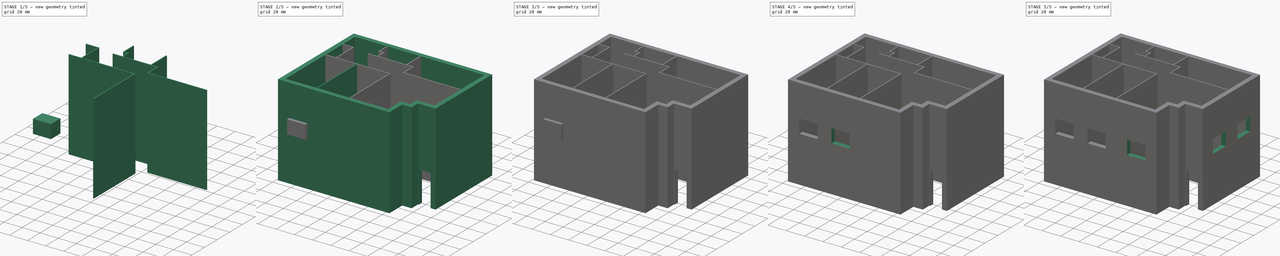
[diagram: build sequence overview — one tinted view per stage of 5, left to right]
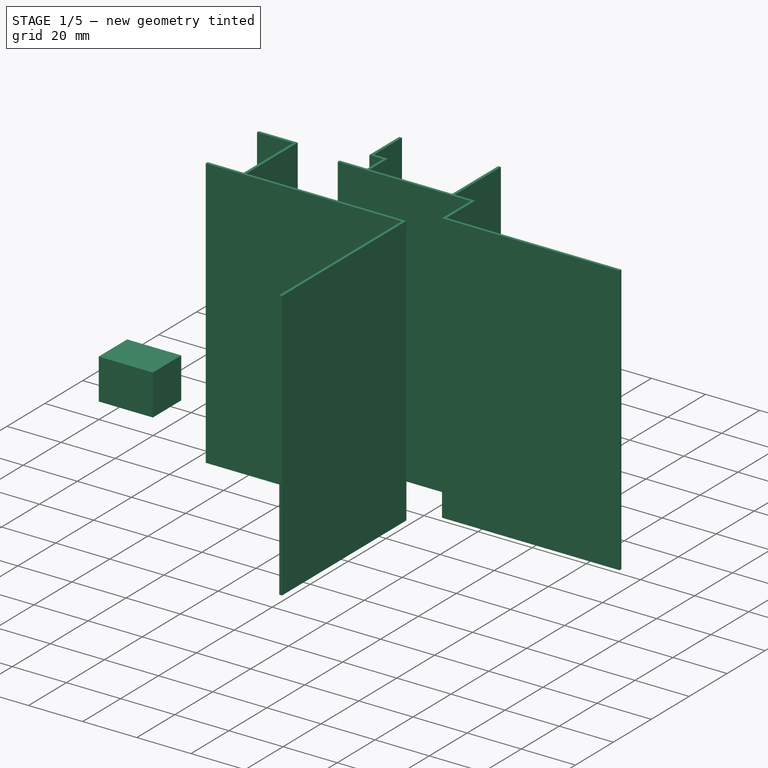
[diagram: stage 1 of 5 — iso view after this stage's code; geometry added in this stage tinted green]
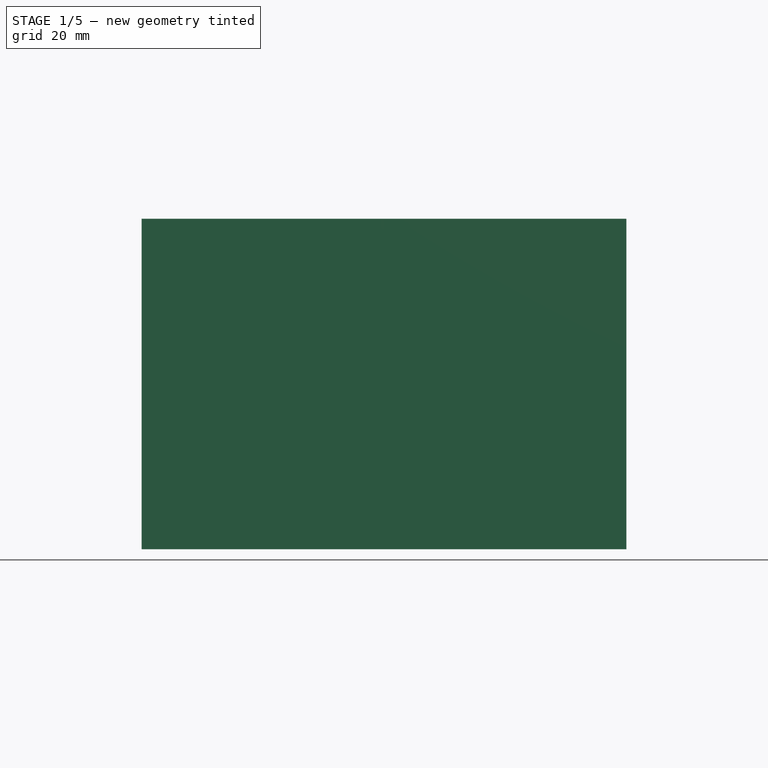
[diagram: stage 1 of 5 — front view after this stage's code; geometry added in this stage tinted green]
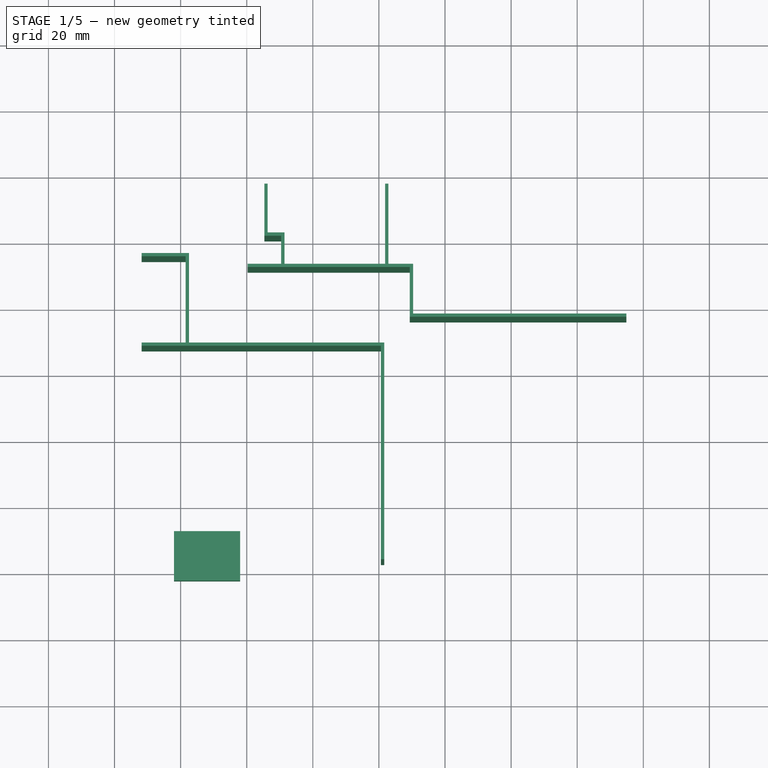
[diagram: stage 1 of 5 — top view after this stage's code; geometry added in this stage tinted green]
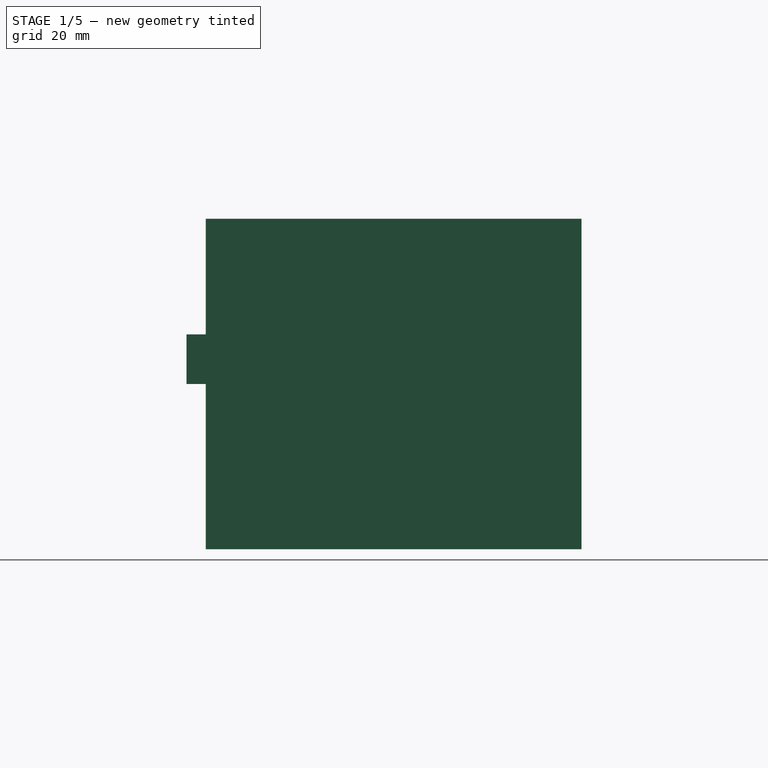
[diagram: stage 1 of 5 — right view after this stage's code; geometry added in this stage tinted green]
FCSTD DOCUMENT  (FreeCAD 0.18R4 (GitTag))
Label: Home
License: All rights reserved
LicenseURL: http://en.wikipedia.org/wiki/All_rights_reserved
objects: Part::Box×12, Part::Cut×12, Sketcher::SketchObject×7, Part::FeaturePython×7
note: 38 computed .brp shape members not serialized (recipe doc carries the construction recipe); baked Part::Feature solids carry a one-line shape summary decoded from their .brp

FEATURE [Sketcher::SketchObject] Sketch
  sketch-geometry (9):
    g0: LineSegment StartX=-71.807 StartY=51.099 StartZ=0 EndX=-71.807 EndY=56.5366 EndZ=0
    g1: LineSegment StartX=-71.807 StartY=56.5366 StartZ=0 EndX=74.8863 EndY=56.5366 EndZ=0
    g2: LineSegment StartX=74.8863 StartY=56.5366 StartZ=0 EndX=74.8863 EndY=-27.1132 EndZ=0
    g3: LineSegment StartX=74.8863 StartY=-27.1132 StartZ=0 EndX=55.6491 EndY=-27.1132 EndZ=0
    g4: LineSegment StartX=55.6491 StartY=-27.1132 StartZ=0 EndX=55.6491 EndY=-37.1244 EndZ=0
    g5: LineSegment StartX=55.6491 StartY=-37.1244 StartZ=0 EndX=45.3779 EndY=-37.1244 EndZ=0
    g6: LineSegment StartX=45.3779 StartY=-37.1244 StartZ=0 EndX=45.3779 EndY=-57.1594 EndZ=0
    g7: LineSegment StartX=45.3779 StartY=-57.1594 StartZ=0 EndX=-71.807 EndY=-57.1594 EndZ=0
    g8: LineSegment StartX=-71.807 StartY=-57.1594 StartZ=0 EndX=-71.807 EndY=51.099 EndZ=0
  constraints (18):
    c: Vertical(g0)
    c: Coincident(g0,g1)
    c: Horizontal(g1)
    c: Coincident(g1,g2)
    c: Vertical(g2)
    c: Coincident(g2,g3)
    c: Horizontal(g3)
    c: Coincident(g3,g4)
    c: Vertical(g4)
    c: Coincident(g4,g5)
    c: Horizontal(g5)
    c: Coincident(g5,g6)
    c: Vertical(g6)
    c: Coincident(g6,g7)
    c: Horizontal(g7)
    c: Coincident(g7,g8)
    c: Coincident(g8,g0)
    c: Vertical(g8)
FEATURE [Sketcher::SketchObject] Sketch001
  ExternalGeometry = -> [Sketch]
  sketch-geometry (4):
    g0: LineSegment StartX=-34.16 StartY=56.5366 StartZ=0 EndX=-34.16 EndY=41.2766 EndZ=0
    g1: LineSegment StartX=-34.16 StartY=41.2766 StartZ=0 EndX=-29.08 EndY=41.2766 EndZ=0
    g2: LineSegment StartX=-29.08 StartY=41.2766 StartZ=0 EndX=-29.08 EndY=31.7966 EndZ=0
    g3: LineSegment StartX=-29.08 StartY=31.7966 StartZ=0 EndX=-39.74 EndY=31.7966 EndZ=0
  constraints (13):
    c: PointOnObject(g0,g-3)
    c: Vertical(g0)
    c: Coincident(g0,g1)
    c: Horizontal(g1)
    c: Coincident(g1,g2)
    c: Vertical(g2)
    c: Coincident(g2,g3)
    c: Horizontal(g3)
    c: DistanceY(g0,g0) = 15.26
    c: DistanceX(g3,g3) = 10.66
    c: DistanceX(g1,g1) = 5.08
    c: DistanceY(g2,g2) = 9.48
    c: DistanceX(g-2,g0) = -34.16
FEATURE [Sketcher::SketchObject] Sketch002
  ExternalGeometry = -> [Sketch,Sketch001]
  sketch-geometry (2):
    g0: LineSegment StartX=2.37 StartY=56.5366 StartZ=0 EndX=2.37 EndY=31.7966 EndZ=0
    g1: LineSegment StartX=2.37 StartY=31.7966 StartZ=0 EndX=-29.08 EndY=31.7966 EndZ=0
  constraints (6):
    c: PointOnObject(g0,g-3)
    c: Vertical(g0)
    c: Coincident(g0,g1)
    c: Coincident(g1,g-5)
    c: Horizontal(g1)
    c: DistanceX(g1,g1) = 31.45
FEATURE [Sketcher::SketchObject] Sketch003
  ExternalGeometry = -> [Sketch,Sketch002]
  sketch-geometry (3):
    g0: LineSegment StartX=74.8863 StartY=16.7466 StartZ=0 EndX=9.84632 EndY=16.7466 EndZ=0
    g1: LineSegment StartX=9.84632 StartY=16.7466 StartZ=0 EndX=9.84632 EndY=31.7966 EndZ=0
    g2: LineSegment StartX=9.84632 StartY=31.7966 StartZ=0 EndX=2.37 EndY=31.7966 EndZ=0
  constraints (9):
    c: PointOnObject(g0,g-3)
    c: Horizontal(g0)
    c: Coincident(g0,g1)
    c: Vertical(g1)
    c: Coincident(g1,g2)
    c: Coincident(g2,g-4)
    c: Horizontal(g2)
    c: DistanceX(g0,g0) = 65.04
    c: DistanceY(g1,g1) = 15.05
FEATURE [Sketcher::SketchObject] Sketch004
  ExternalGeometry = -> [Sketch]
  sketch-geometry (2):
    g0: LineSegment StartX=-71.807 StartY=35.04 StartZ=0 EndX=-57.977 EndY=35.04 EndZ=0
    g1: LineSegment StartX=-57.977 StartY=35.04 StartZ=0 EndX=-57.977 EndY=7.96 EndZ=0
  constraints (7):
    c: PointOnObject(g0,g-3)
    c: Horizontal(g0)
    c: Coincident(g0,g1)
    c: Vertical(g1)
    c: DistanceY(g1,g1) = 27.08
    c: DistanceX(g0,g0) = 13.83
    c: DistanceY(g-1,g1) = 7.96
FEATURE [Sketcher::SketchObject] Sketch005
  ExternalGeometry = -> [Sketch004,Sketch]
  sketch-geometry (3):
    g0: LineSegment StartX=-71.807 StartY=7.96 StartZ=0 EndX=-57.977 EndY=7.96 EndZ=0
    g1: LineSegment StartX=-57.977 StartY=7.96 StartZ=0 EndX=1.10303 EndY=7.96 EndZ=0
    g2: LineSegment StartX=1.10303 StartY=7.96 StartZ=0 EndX=1.10303 EndY=-57.1594 EndZ=0
  constraints (9):
    c: PointOnObject(g0,g-4)
    c: Coincident(g0,g-3)
    c: Horizontal(g0)
    c: Coincident(g0,g1)
    c: Horizontal(g1)
    c: Coincident(g1,g2)
    c: PointOnObject(g2,g-5)
    c: Vertical(g2)
    c: DistanceX(g1,g1) = 59.08
FEATURE [Part::FeaturePython] Wall001  # Arch/BIM object (typed FeaturePython)
  Align = 2
  Base = -> Sketch001
  BlockHeight = 0
  BlockLength = 0
  CountBroken = 0
  CountEntire = 0
  Face = 0
  Height = 100
  HorizontalArea = 40.48
  IfcRole = 156
  Joint = 0
  Length = 40.48
  MakeBlocks = false
  MoveWithHost = false
  Normal = (0,0,0)
  OffsetFirst = 0
  OffsetSecond = 0
  PerimeterLength = 82.96
  VerticalArea = 8296
  Width = 1
FEATURE [Part::FeaturePython] Wall002  # Arch/BIM object (typed FeaturePython)
  Align = 2
  Base = -> Sketch002
  BlockHeight = 0
  BlockLength = 0
  CountBroken = 0
  CountEntire = 0
  Face = 0
  Height = 100
  HorizontalArea = 56.19
  IfcRole = 156
  Joint = 0
  Length = 56.19
  MakeBlocks = false
  MoveWithHost = false
  Normal = (0,0,0)
  OffsetFirst = 0
  OffsetSecond = 0
  PerimeterLength = 114.38
  VerticalArea = 11438
  Width = 1
FEATURE [Part::FeaturePython] Wall003  # Arch/BIM object (typed FeaturePython)
  Align = 2
  Base = -> Sketch003
  BlockHeight = 0
  BlockLength = 0
  CountBroken = 0
  CountEntire = 0
  Face = 0
  Height = 100
  HorizontalArea = 87.5663
  IfcRole = 156
  Joint = 0
  Length = 87.5663
  MakeBlocks = false
  MoveWithHost = false
  Normal = (0,0,0)
  OffsetFirst = 0
  OffsetSecond = 0
  PerimeterLength = 177.133
  VerticalArea = 17713.3
  Width = 1
FEATURE [Part::FeaturePython] Wall004  # Arch/BIM object (typed FeaturePython)
  Align = 2
  Base = -> Sketch004
  BlockHeight = 0
  BlockLength = 0
  CountBroken = 0
  CountEntire = 0
  Face = 0
  Height = 100
  HorizontalArea = 40.91
  IfcRole = 156
  Joint = 0
  Length = 40.91
  MakeBlocks = false
  MoveWithHost = false
  Normal = (0,0,0)
  OffsetFirst = 0
  OffsetSecond = 0
  PerimeterLength = 83.82
  VerticalArea = 8382
  Width = 1
FEATURE [Part::FeaturePython] Wall005  # Arch/BIM object (typed FeaturePython)
  Align = 2
  Base = -> Sketch005
  BlockHeight = 0
  BlockLength = 0
  CountBroken = 0
  CountEntire = 0
  Face = 0
  Height = 100
  HorizontalArea = 138.029
  IfcRole = 156
  Joint = 0
  Length = 138.029
  MakeBlocks = false
  MoveWithHost = false
  Normal = (0,0,0)
  OffsetFirst = 0
  OffsetSecond = 0
  PerimeterLength = 278.059
  VerticalArea = 27805.9
  Width = 1
FEATURE [Part::Box] Box007  label="Куб007"
  AttacherType = Attacher::AttachEngine3D
  Height = 15
  Length = 20
  Placement = pos=(-62,-63,50) rot=(0,0,1;0rad)
  Width = 15
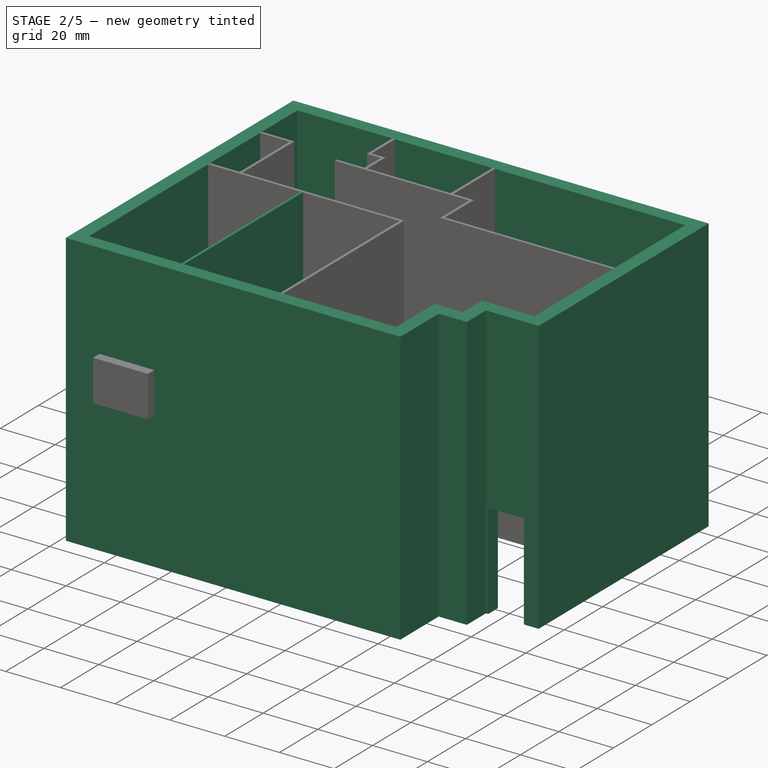
[diagram: stage 2 of 5 — iso view after this stage's code; geometry added in this stage tinted green]
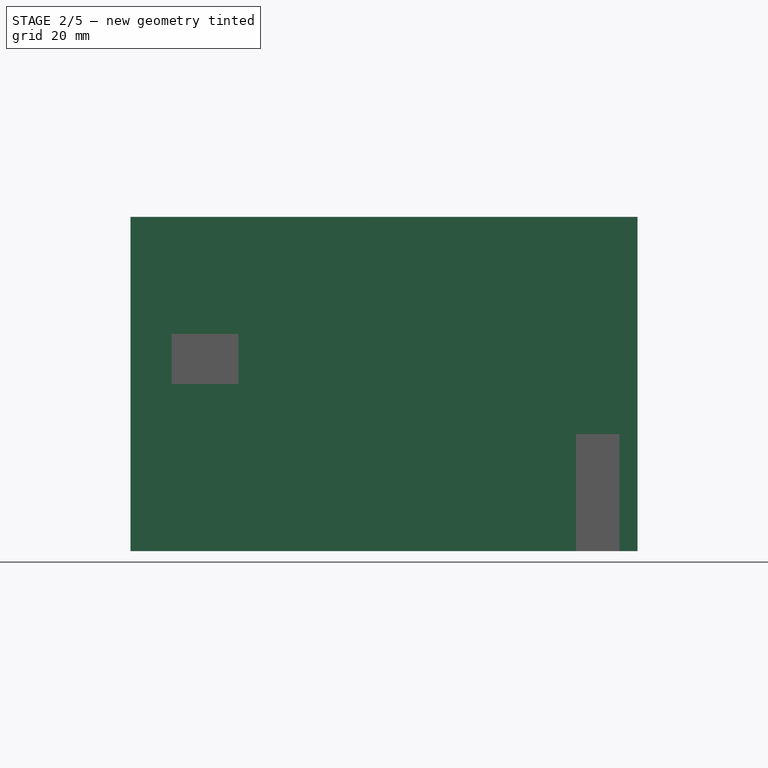
[diagram: stage 2 of 5 — front view after this stage's code; geometry added in this stage tinted green]
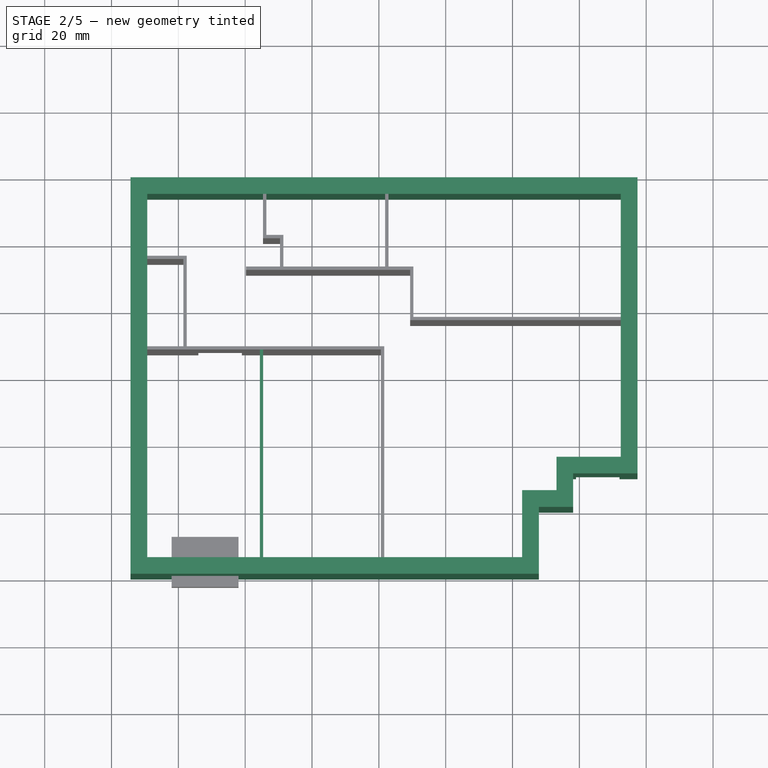
[diagram: stage 2 of 5 — top view after this stage's code; geometry added in this stage tinted green]
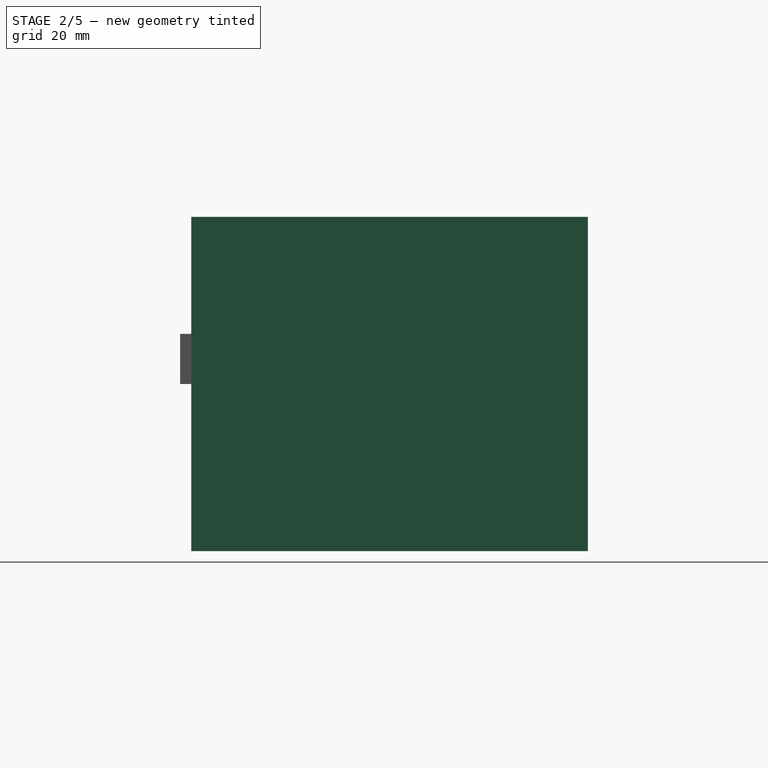
[diagram: stage 2 of 5 — right view after this stage's code; geometry added in this stage tinted green]
FEATURE [Part::FeaturePython] Wall  # Arch/BIM object (typed FeaturePython)
  Additions = -> [Wall005,Wall002,Wall001,Wall004,Wall003]
  Align = 2
  Base = -> Sketch
  BlockHeight = 0
  BlockLength = 0
  CountBroken = 0
  CountEntire = 0
  Face = 0
  Height = 100
  HorizontalArea = 2603.89
  IfcRole = 156
  Joint = 0
  Length = 520.779
  MakeBlocks = false
  MoveWithHost = false
  Normal = (0,0,0)
  OffsetFirst = 0
  OffsetSecond = 0
  PerimeterLength = 540.779
  VerticalArea = 104156
  Width = 5
FEATURE [Part::Box] Box005  label="Куб005"
  AttacherType = Attacher::AttachEngine3D
  Height = 35
  Length = 10
  Placement = pos=(72,-31,0) rot=(0,0,1;1.5708rad)
  Width = 13
FEATURE [Part::Box] Box006  label="Куб006"
  AttacherType = Attacher::AttachEngine3D
  Height = 40
  Length = 10
  Placement = pos=(-41,-1,0) rot=(0,0,1;1.5708rad)
  Width = 13
FEATURE [Sketcher::SketchObject] Sketch006
  ExternalGeometry = -> [Sketch005,Sketch]
  sketch-geometry (1):
    g0: LineSegment StartX=-35.12 StartY=7.96 StartZ=0 EndX=-35.12 EndY=-57.1594 EndZ=0
  constraints (4):
    c: PointOnObject(g0,g-3)
    c: PointOnObject(g0,g-4)
    c: Vertical(g0)
    c: Distance(g-1,g0) = 35.12
FEATURE [Part::FeaturePython] Wall006  # Arch/BIM object (typed FeaturePython)
  Additions = -> [Wall]
  Align = 2
  Base = -> Sketch006
  BlockHeight = 0
  BlockLength = 0
  CountBroken = 0
  CountEntire = 0
  Face = 0
  Height = 100
  HorizontalArea = 65.1194
  IfcRole = 156
  Joint = 0
  Length = 65.1194
  MakeBlocks = false
  MoveWithHost = false
  Normal = (0,0,0)
  OffsetFirst = 0
  OffsetSecond = 0
  PerimeterLength = 132.239
  VerticalArea = 13223.9
  Width = 1
FEATURE [Part::Cut] Cut
  Base = -> Wall006
  Tool = -> Box005
FEATURE [Part::Cut] Cut001
  Base = -> Cut
  Tool = -> Box006
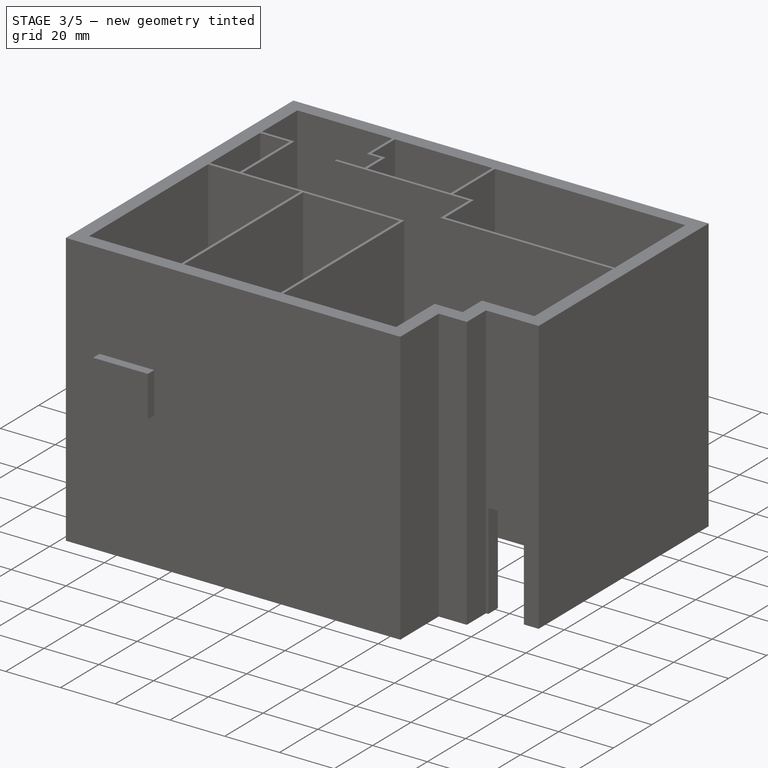
[diagram: stage 3 of 5 — iso view after this stage's code; geometry added in this stage tinted green]
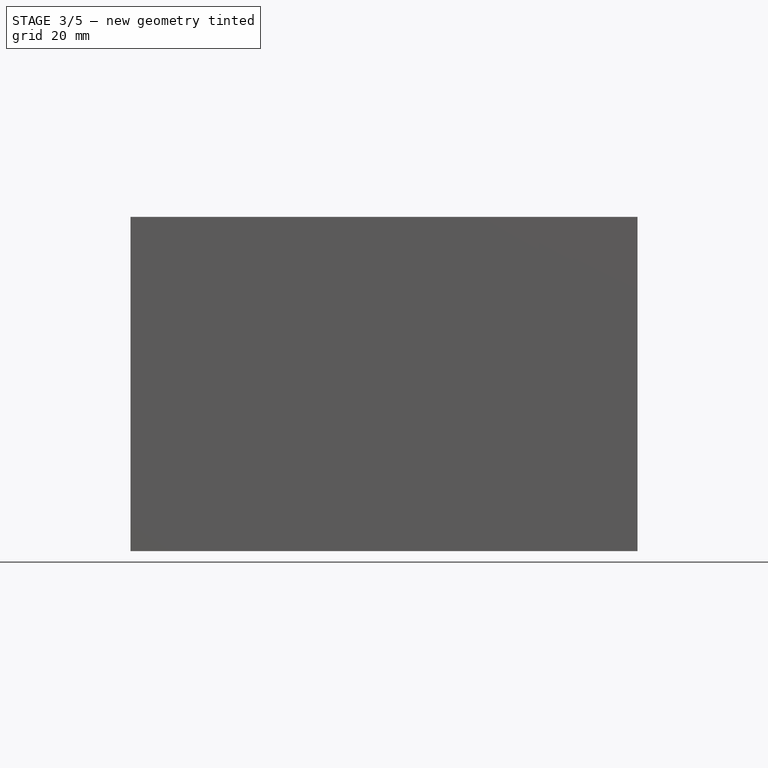
[diagram: stage 3 of 5 — front view after this stage's code; geometry added in this stage tinted green]
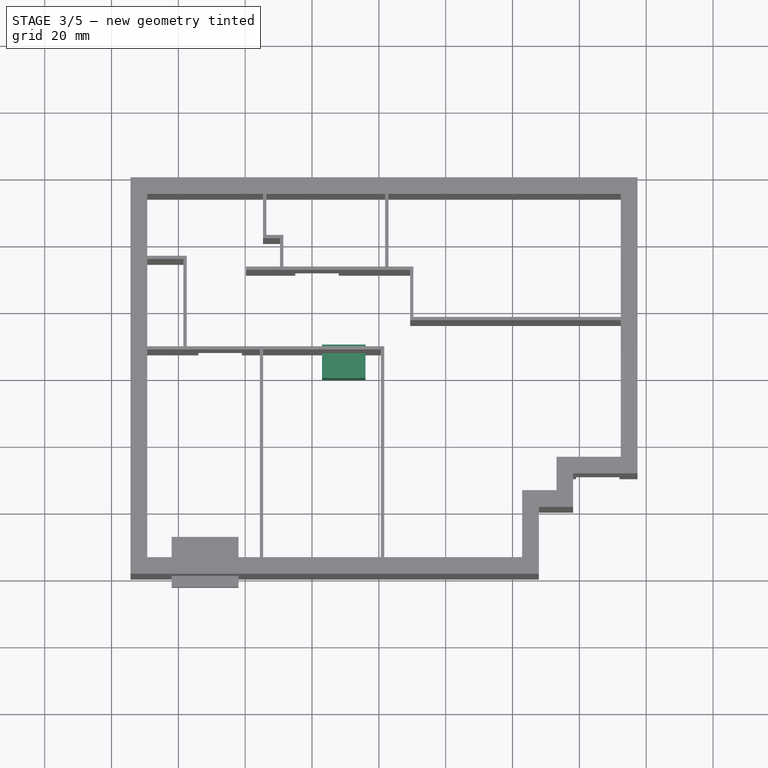
[diagram: stage 3 of 5 — top view after this stage's code; geometry added in this stage tinted green]
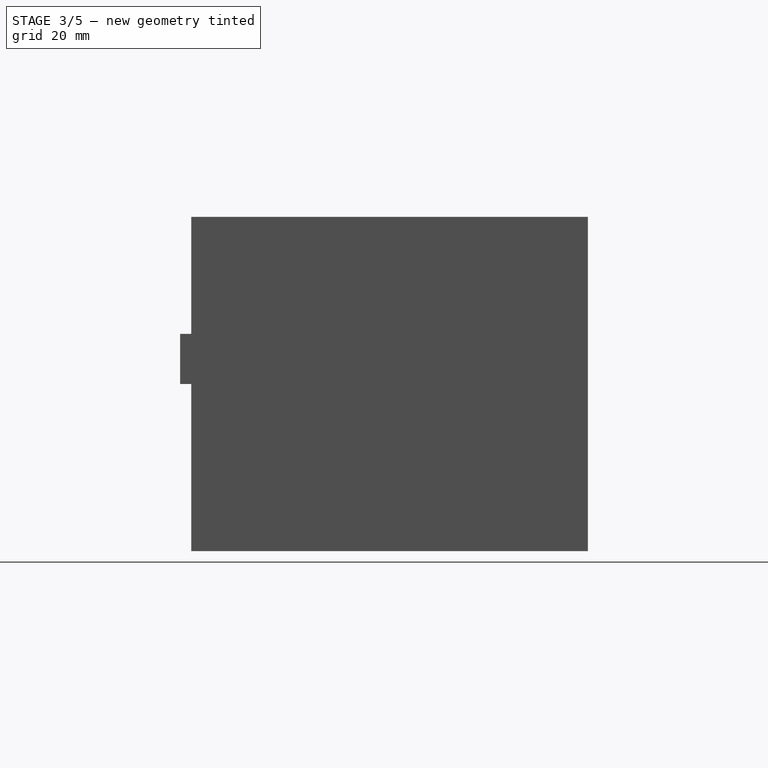
[diagram: stage 3 of 5 — right view after this stage's code; geometry added in this stage tinted green]
FEATURE [Part::Box] Box  label="Куб"
  AttacherType = Attacher::AttachEngine3D
  Height = 40
  Length = 10
  Placement = pos=(-77,36,2) rot=(0,0,1;0rad)
  Width = 17
FEATURE [Part::Box] Box001  label="Куб001"
  AttacherType = Attacher::AttachEngine3D
  Height = 40
  Length = 10
  Placement = pos=(-62,14,0) rot=(0,0,1;0rad)
  Width = 13
FEATURE [Part::Box] Box002  label="Куб002"
  AttacherType = Attacher::AttachEngine3D
  Height = 40
  Length = 10
  Placement = pos=(-12,28,0) rot=(0,0,1;1.5708rad)
  Width = 13
FEATURE [Part::Box] Box003  label="Куб003"
  AttacherType = Attacher::AttachEngine3D
  Height = 40
  Length = 10
  Placement = pos=(-4,-9e-16,0) rot=(0,0,1;1.5708rad)
  Width = 13
FEATURE [Part::Cut] Cut002
  Base = -> Cut001
  Tool = -> Box
FEATURE [Part::Cut] Cut003
  Base = -> Cut002
  Tool = -> Box001
FEATURE [Part::Cut] Cut004
  Base = -> Cut003
  Tool = -> Box002
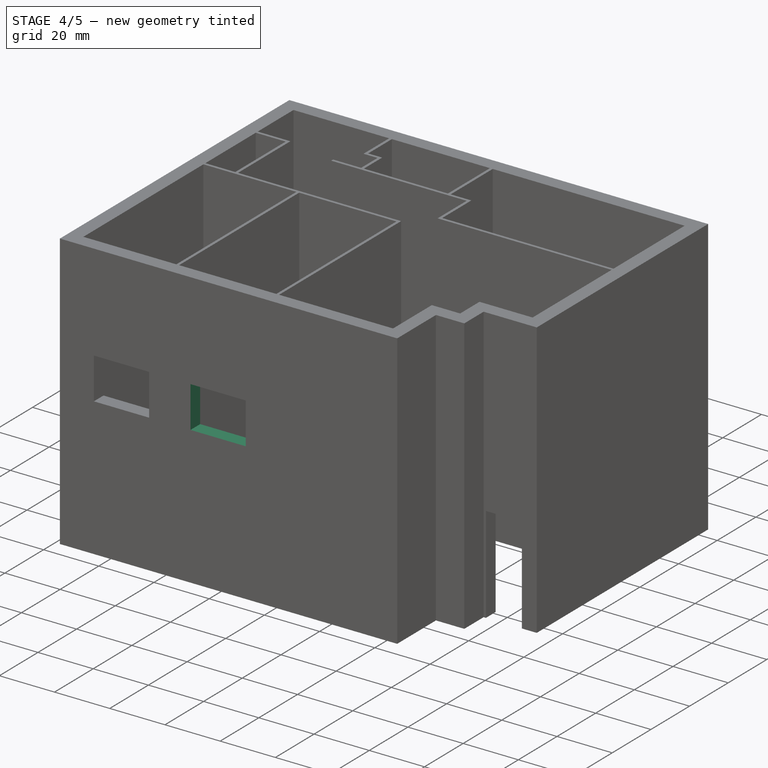
[diagram: stage 4 of 5 — iso view after this stage's code; geometry added in this stage tinted green]
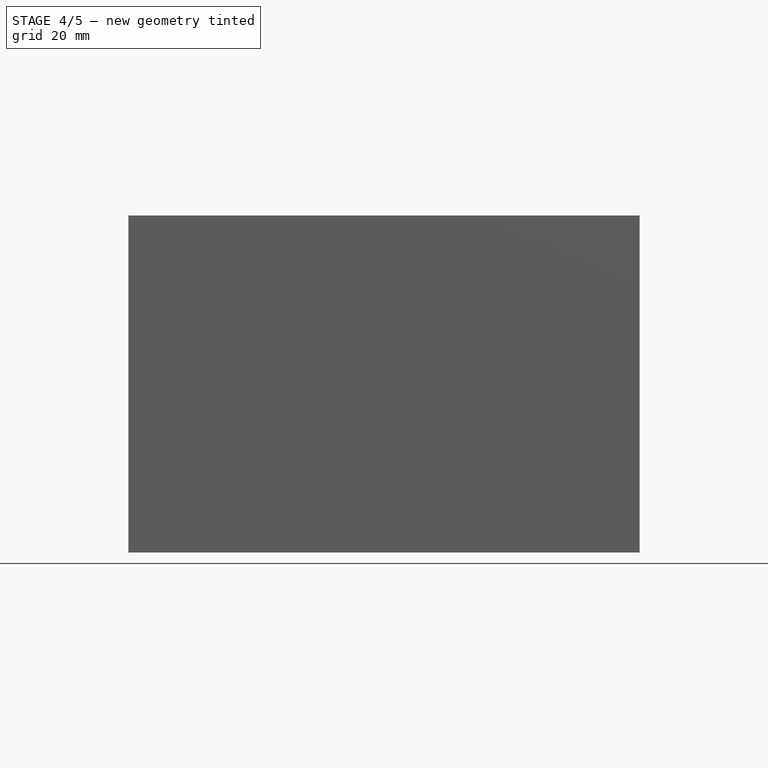
[diagram: stage 4 of 5 — front view after this stage's code; geometry added in this stage tinted green]
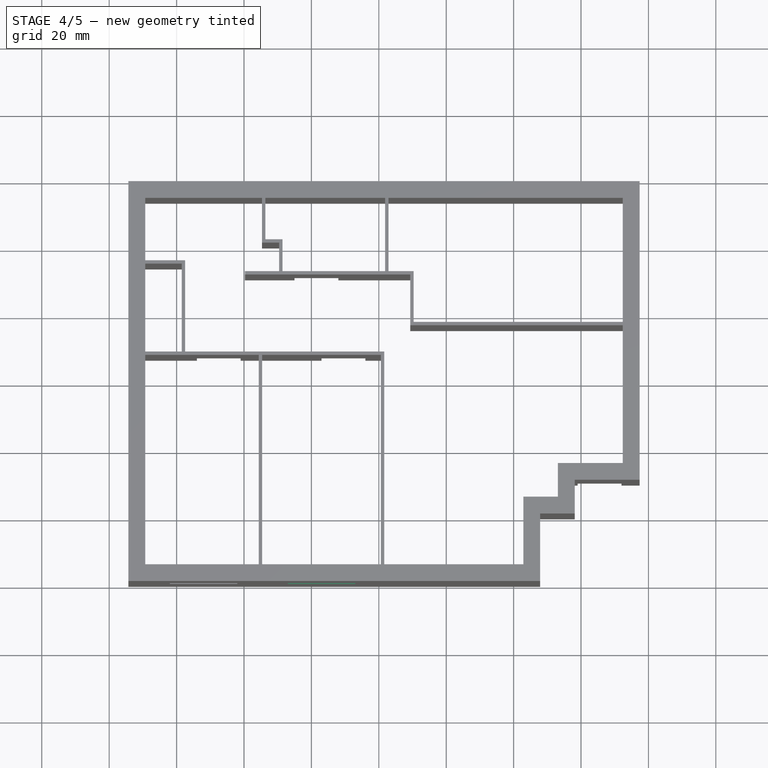
[diagram: stage 4 of 5 — top view after this stage's code; geometry added in this stage tinted green]
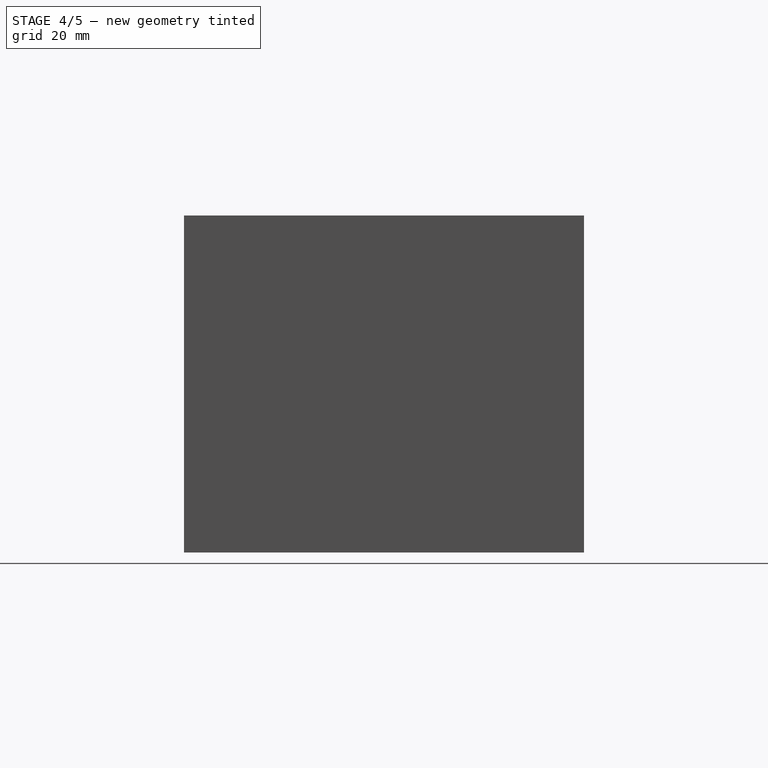
[diagram: stage 4 of 5 — right view after this stage's code; geometry added in this stage tinted green]
FEATURE [Part::Box] Box004  label="Куб004"
  AttacherType = Attacher::AttachEngine3D
  Height = 40
  Length = 10
  Placement = pos=(17,31,0) rot=(0,0,1;3.14159rad)
  Width = 13
FEATURE [Part::Cut] Cut005
  Base = -> Cut004
  Tool = -> Box003
FEATURE [Part::Cut] Cut006
  Base = -> Cut005
  Tool = -> Box004
FEATURE [Part::Box] Box008  label="Куб008"
  AttacherType = Attacher::AttachEngine3D
  Height = 15
  Length = 20
  Placement = pos=(-27,-63,50) rot=(0,0,1;0rad)
  Width = 15
FEATURE [Part::Cut] Cut007
  Base = -> Cut006
  Tool = -> Box007
FEATURE [Part::Cut] Cut008
  Base = -> Cut007
  Tool = -> Box008
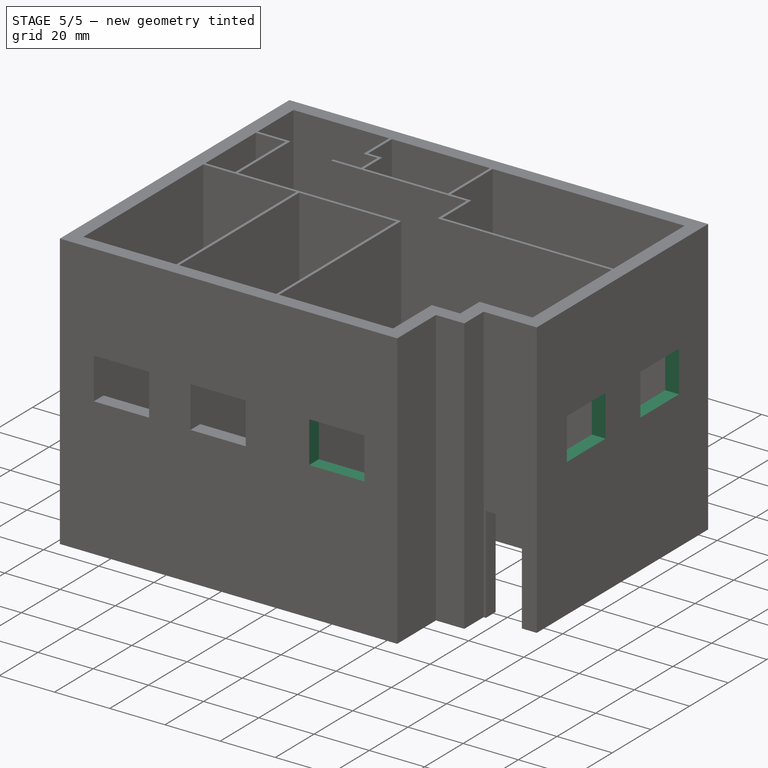
[diagram: stage 5 of 5 — iso view after this stage's code; geometry added in this stage tinted green]
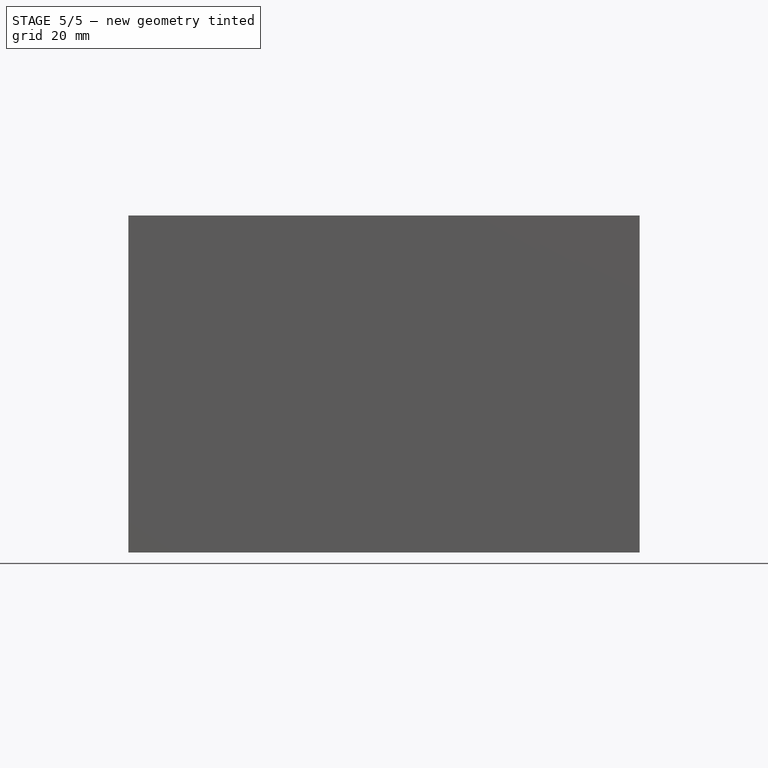
[diagram: stage 5 of 5 — front view after this stage's code; geometry added in this stage tinted green]
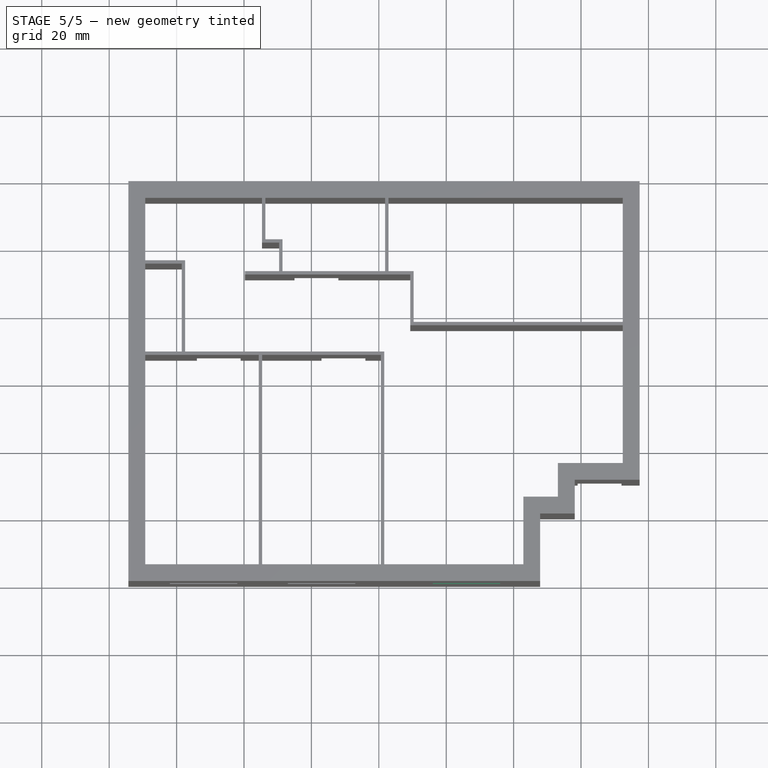
[diagram: stage 5 of 5 — top view after this stage's code; geometry added in this stage tinted green]
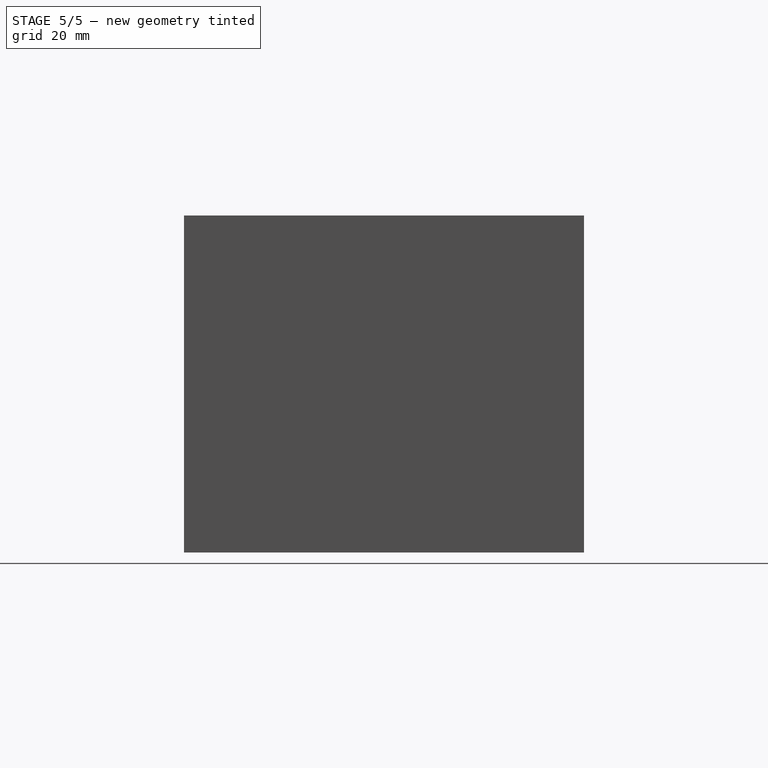
[diagram: stage 5 of 5 — right view after this stage's code; geometry added in this stage tinted green]
FEATURE [Part::Box] Box009  label="Куб009"
  AttacherType = Attacher::AttachEngine3D
  Height = 15
  Length = 20
  Placement = pos=(16,-63,50) rot=(0,0,1;0rad)
  Width = 15
FEATURE [Part::Box] Box010  label="Куб010"
  AttacherType = Attacher::AttachEngine3D
  Height = 15
  Length = 20
  Placement = pos=(81,-14,50) rot=(0,0,1;1.5708rad)
  Width = 15
FEATURE [Part::Box] Box011  label="Куб011"
  AttacherType = Attacher::AttachEngine3D
  Height = 15
  Length = 20
  Placement = pos=(81,24,50) rot=(0,0,1;1.5708rad)
  Width = 15
FEATURE [Part::Cut] Cut009
  Base = -> Cut008
  Tool = -> Box009
FEATURE [Part::Cut] Cut010
  Base = -> Cut009
  Tool = -> Box010
FEATURE [Part::Cut] Cut011
  Base = -> Cut010
  Tool = -> Box011
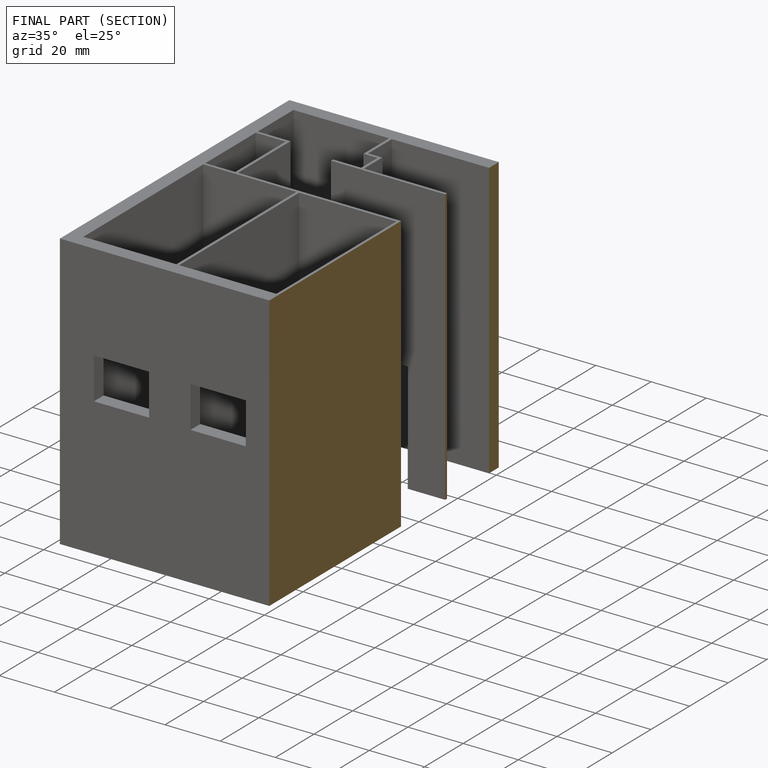
[diagram: finished part — half-section view (interior)]
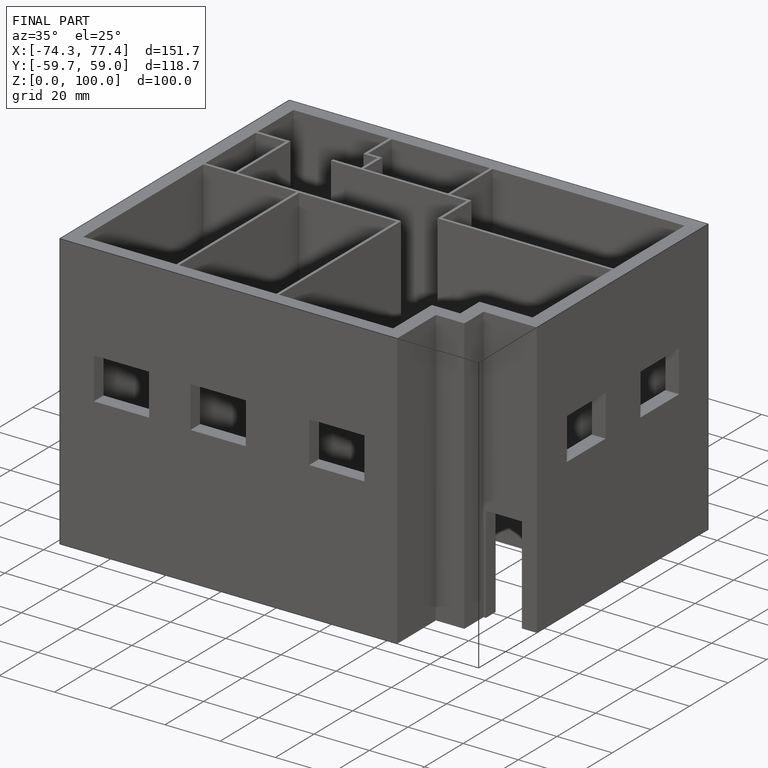
[diagram: finished part — iso view with bounding-box wireframe]
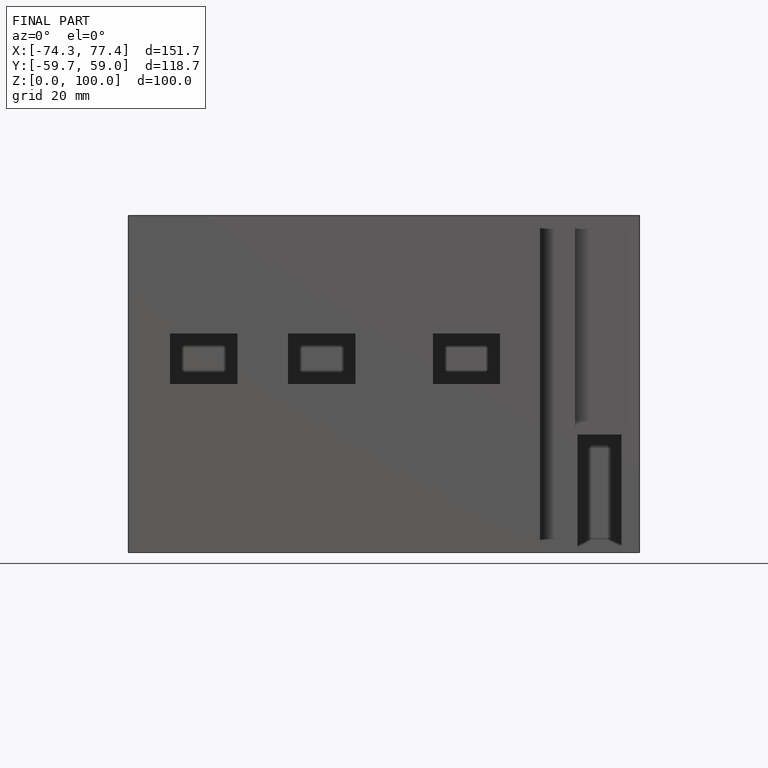
[diagram: finished part — front view with bounding-box wireframe]
